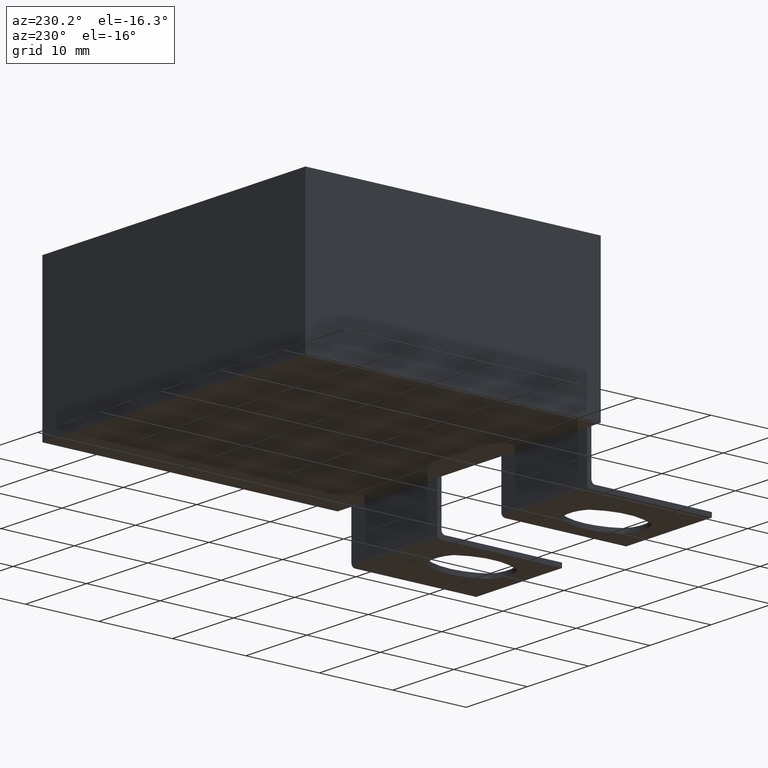
[diagram: clean part render]
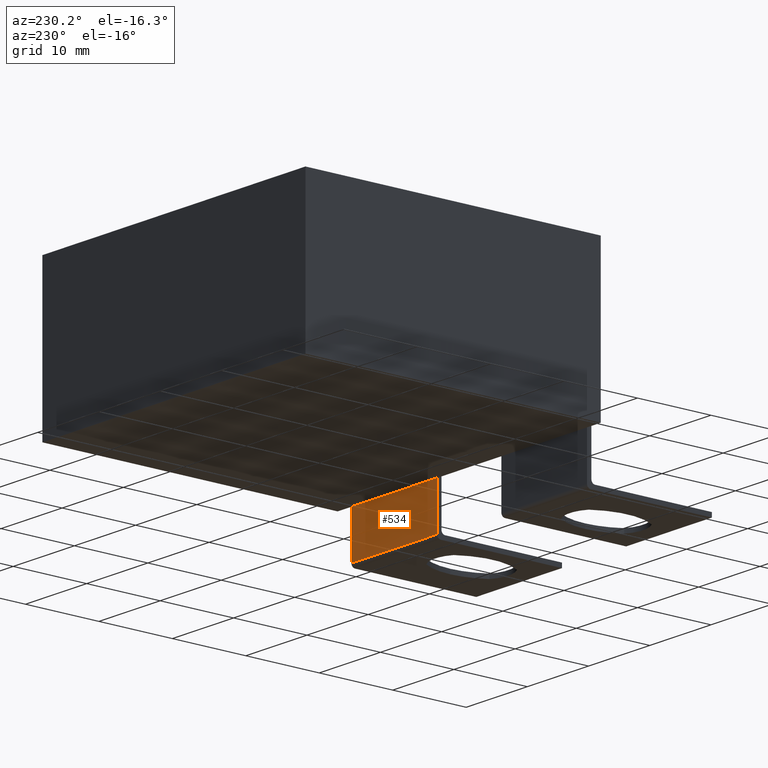
[diagram: same view with one face highlighted and labeled with its STEP entity id]
A machine part, auxiliary view. The second image highlights one B-rep face of the part: STEP entity #534.
In plain terms, the highlighted planar face has unit normal (0, 1, 0).
Its self-contained STEP definition (entity closure, byte-faithful):
#28 = DIRECTION ( 'NONE',  ( -1.000000000000000000, 0.0000000000000000000, 0.0000000000000000000 ) ) ;
#149 = LINE ( 'NONE', #240, #1535 ) ;
#240 = CARTESIAN_POINT ( 'NONE',  ( 0.0000000000000000000, 0.0000000000000000000, 0.0000000000000000000 ) ) ;
#355 = CARTESIAN_POINT ( 'NONE',  ( 26.74999999999999600, 0.0000000000000000000, -6.145844941771883900 ) ) ;
#534 = ADVANCED_FACE ( 'NONE', ( #2805 ), #2790, .T. ) ;
#725 = EDGE_LOOP ( 'NONE', ( #1220, #2072, #3425, #2053 ) ) ;
#745 = EDGE_CURVE ( 'NONE', #3211, #1291, #859, .T. ) ;
#759 = CARTESIAN_POINT ( 'NONE',  ( 40.74999999999999300, 0.0000000000000000000, -6.145844941771883900 ) ) ;
#784 = CARTESIAN_POINT ( 'NONE',  ( 26.74999999999999600, 0.0000000000000000000, -6.645844941771883900 ) ) ;
#834 = VECTOR ( 'NONE', #3479, 1000.000000000000000 ) ;
#859 = LINE ( 'NONE', #3260, #3477 ) ;
#879 = DIRECTION ( 'NONE',  ( 0.0000000000000000000, 0.0000000000000000000, 1.000000000000000000 ) ) ;
#904 = VECTOR ( 'NONE', #1314, 1000.000000000000000 ) ;
#1073 = EDGE_CURVE ( 'NONE', #3093, #3211, #2087, .T. ) ;
#1196 = DIRECTION ( 'NONE',  ( 0.0000000000000000000, 1.000000000000000000, 0.0000000000000000000 ) ) ;
#1220 = ORIENTED_EDGE ( 'NONE', *, *, #1073, .T. ) ;
#1290 = CARTESIAN_POINT ( 'NONE',  ( 40.74999999999999300, 0.0000000000000000000, -6.645844941771883900 ) ) ;
#1291 = VERTEX_POINT ( 'NONE', #355 ) ;
#1314 = DIRECTION ( 'NONE',  ( 0.0000000000000000000, -0.0000000000000000000, -1.000000000000000000 ) ) ;
#1372 = LINE ( 'NONE', #784, #834 ) ;
#1535 = VECTOR ( 'NONE', #2913, 1000.000000000000000 ) ;
#2004 = AXIS2_PLACEMENT_3D ( 'NONE', #2495, #1196, #879 ) ;
#2053 = ORIENTED_EDGE ( 'NONE', *, *, #3415, .T. ) ;
#2072 = ORIENTED_EDGE ( 'NONE', *, *, #745, .T. ) ;
#2087 = LINE ( 'NONE', #1290, #904 ) ;
#2495 = CARTESIAN_POINT ( 'NONE',  ( 43.00000000000000000, 0.0000000000000000000, 0.0000000000000000000 ) ) ;
#2616 = CARTESIAN_POINT ( 'NONE',  ( 40.74999999999999300, 0.0000000000000000000, 0.0000000000000000000 ) ) ;
#2738 = EDGE_CURVE ( 'NONE', #1291, #3225, #1372, .T. ) ;
#2790 = PLANE ( 'NONE',  #2004 ) ;
#2805 = FACE_OUTER_BOUND ( 'NONE', #725, .T. ) ;
#2913 = DIRECTION ( 'NONE',  ( 1.000000000000000000, 0.0000000000000000000, 0.0000000000000000000 ) ) ;
#3093 = VERTEX_POINT ( 'NONE', #2616 ) ;
#3210 = CARTESIAN_POINT ( 'NONE',  ( 26.74999999999999600, 0.0000000000000000000, 0.0000000000000000000 ) ) ;
#3211 = VERTEX_POINT ( 'NONE', #759 ) ;
#3225 = VERTEX_POINT ( 'NONE', #3210 ) ;
#3260 = CARTESIAN_POINT ( 'NONE',  ( 43.00000000000000000, 0.0000000000000000000, -6.145844941771883900 ) ) ;
#3415 = EDGE_CURVE ( 'NONE', #3225, #3093, #149, .T. ) ;
#3425 = ORIENTED_EDGE ( 'NONE', *, *, #2738, .T. ) ;
#3477 = VECTOR ( 'NONE', #28, 1000.000000000000000 ) ;
#3479 = DIRECTION ( 'NONE',  ( 0.0000000000000000000, 0.0000000000000000000, 1.000000000000000000 ) ) ;